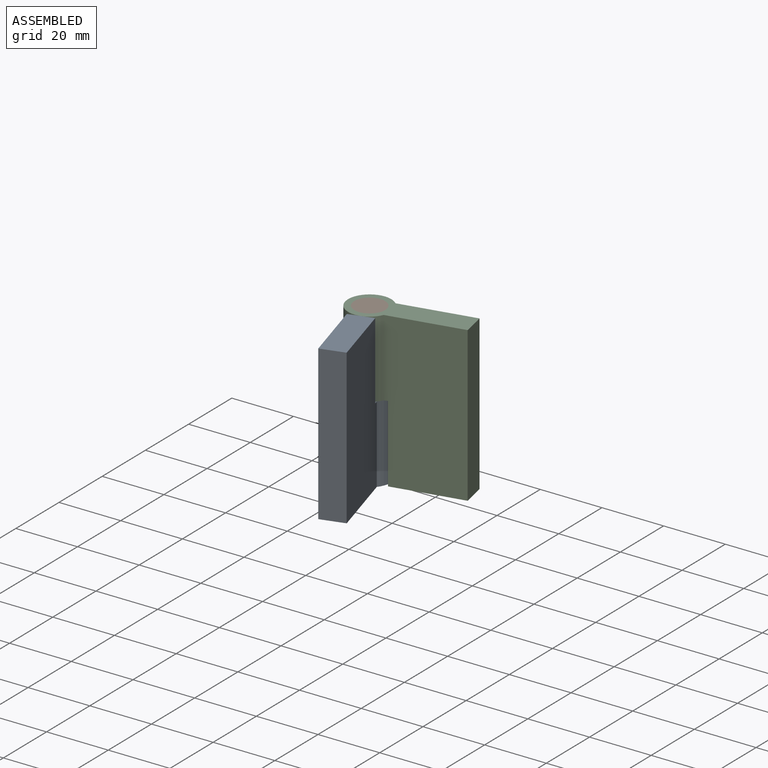
[diagram: assembled view]
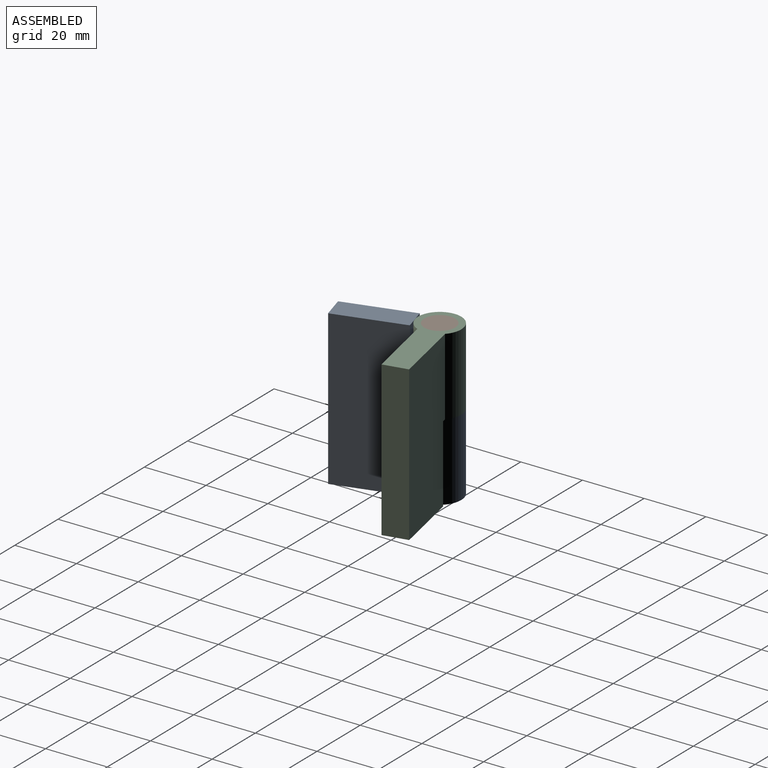
[diagram: assembled view, second angle]
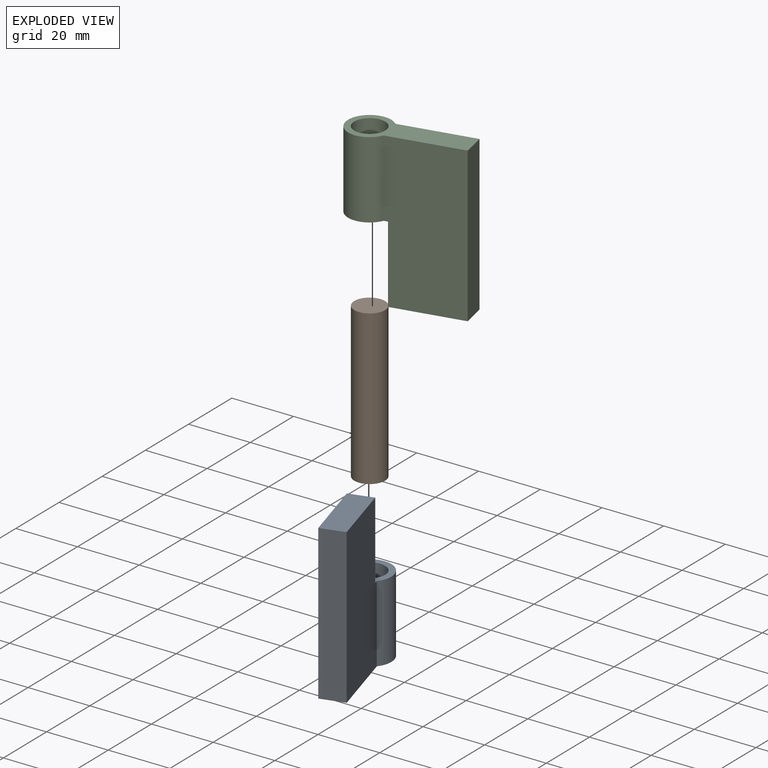
[diagram: exploded view]
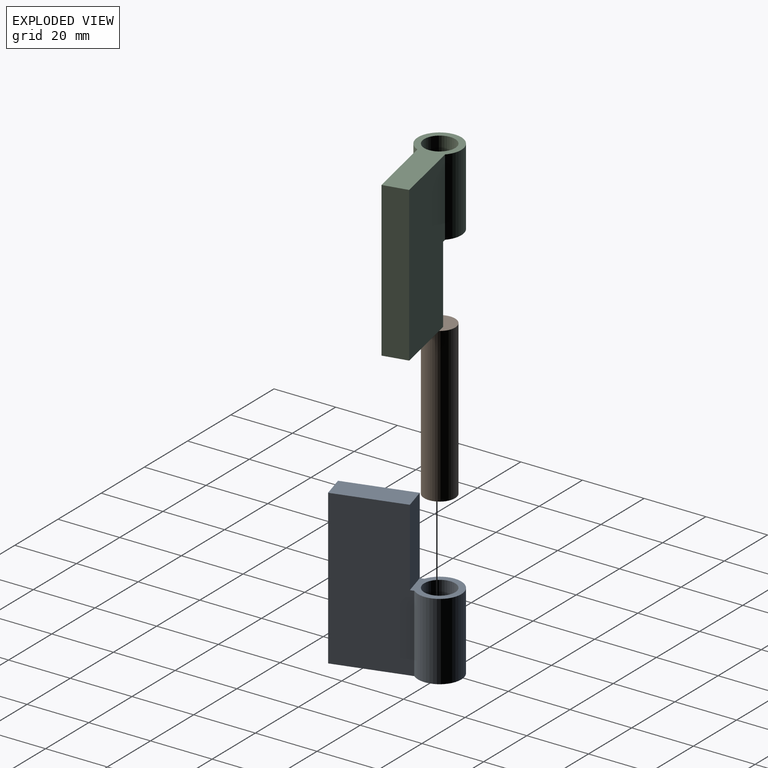
[diagram: exploded view, second angle]
ASSEMBLY  parts=3 mates=2
PART A: 9 faces, bbox 37x14x50 mm
  f0: plane 14x14mm, normal (0,0,1), area 78.6mm2, adj f1,f2,f3,f4,f7
  f1: plane 50x24.26mm, normal (0,-1,0), area 1181.4mm2, adj f0,f2,f5,f6,f7,f8
  f2: cylinder r=7mm len=25mm, axis (0,0,1), area 886.7mm2, adj f0,f1,f3,f6
  f3: plane 50x24.26mm, normal (0,1,0), area 1181.4mm2, adj f0,f2,f5,f6,f7,f8
  f4: cylinder r=5mm len=25mm, axis (0,0,1), area 785.4mm2, adj f0,f6
  f5: plane 50x8mm, normal (-1,0,0), area 400mm2, adj f1,f3,f6,f8
  f6: plane 37x14mm, normal (0,0,-1), area 262.6mm2, adj f1,f2,f3,f4,f5
  f7: plane 25x8mm, normal (1,0,0), area 200mm2, adj f0,f1,f3,f8
  f8: plane 23x8mm, normal (0,0,1), area 184mm2, adj f1,f3,f5,f7
PART B: 3 faces, bbox 10x10x50 mm
  f0: cylinder r=5mm len=50mm, axis (0,0,-1), area 1570.8mm2, adj f1,f2
  f1: plane 10x10mm, normal (0,0,1), area 78.5mm2, adj f0
  f2: plane 10x10mm, normal (0,0,-1), area 78.5mm2, adj f0
PART C: same geometry as A
PLACE A rot(axis=(0,0,1),105.8deg) t=(6.92,2.61,2.53)mm
PLACE B rot(axis=(0.1,-0.99,0),180deg) t=(6.92,2.61,2.53)mm
PLACE C rot(axis=(0.1,-0.99,0),180deg) t=(6.92,2.61,2.53)mm fixed
MATE revolute B.f0 <-> A.f2  axis (0,0,-1) through (6.92,2.61,-22.47)mm
MATE fastened B.f0 <-> C.f4  axis (0,0,1) through (6.92,2.61,27.53)mm
